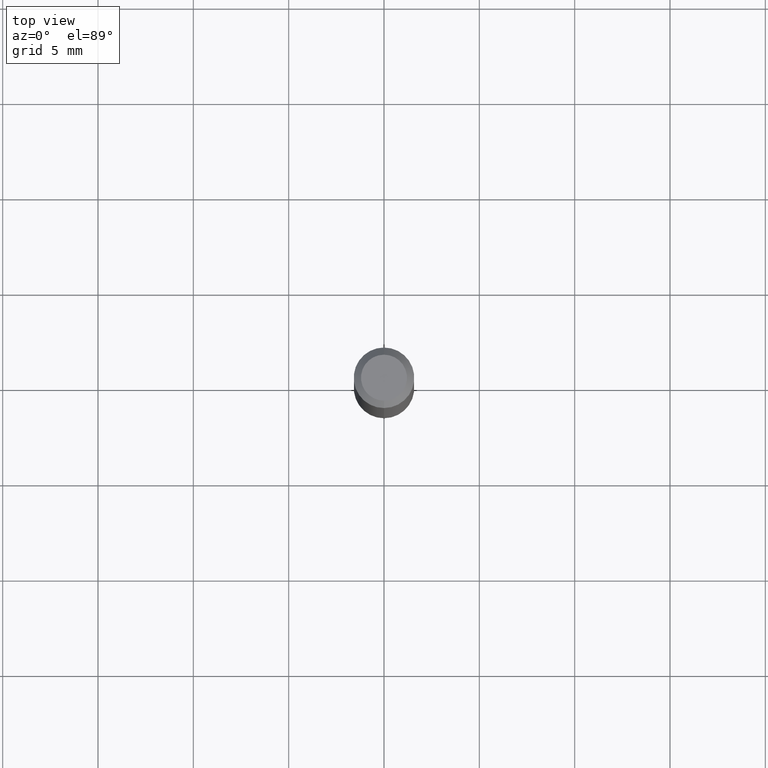
[diagram: clean part render]
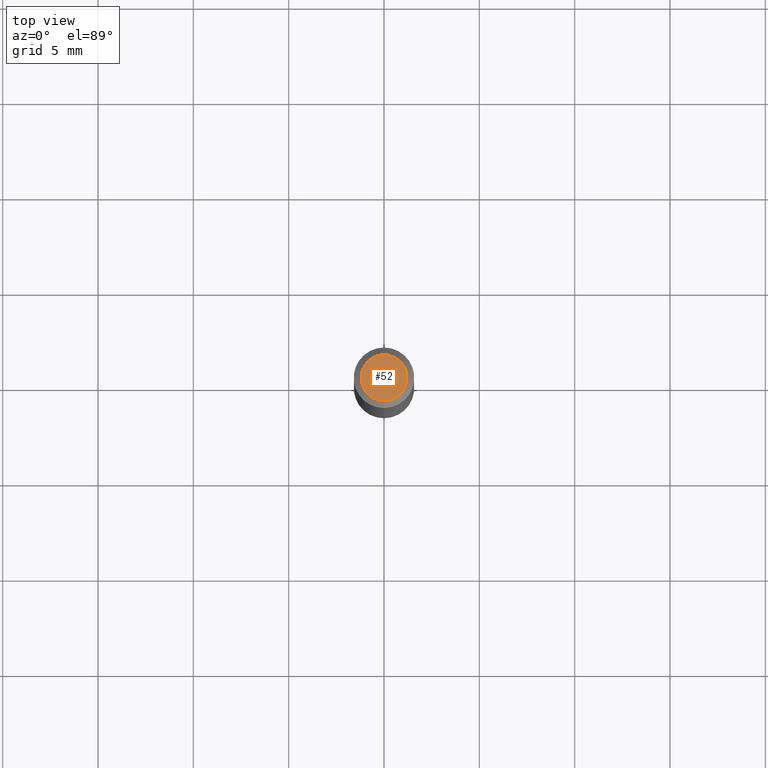
[diagram: same view with one face highlighted and labeled with its STEP entity id]
A machine part, top view. The second image highlights one B-rep face of the part: STEP entity #52.
In plain terms, the highlighted planar face has unit normal (0, -0, -1).
Its self-contained STEP definition (entity closure, byte-faithful):
#52 = ADVANCED_FACE ( 'NONE', ( #170 ), #98, .F. ) ;
#98 = PLANE ( 'NONE',  #128 ) ;
#122 = DIRECTION ( 'NONE',  ( 6.982962677686265922E-15, 1.000000000000000000, -3.491457958623879198E-15 ) ) ;
#128 = AXIS2_PLACEMENT_3D ( 'NONE', #494, #330, #122 ) ;
#147 = VERTEX_POINT ( 'NONE', #151 ) ;
#151 = CARTESIAN_POINT ( 'NONE',  ( -3.773273898774340269E-16, -0.04749999999999999362, 1.569828228823879964E-16 ) ) ;
#167 = VERTEX_POINT ( 'NONE', #390 ) ;
#170 = FACE_OUTER_BOUND ( 'NONE', #240, .T. ) ;
#184 = ORIENTED_EDGE ( 'NONE', *, *, #382, .T. ) ;
#233 = CIRCLE ( 'NONE', #300, 0.04749999999999999362 ) ;
#240 = EDGE_LOOP ( 'NONE', ( #184, #246 ) ) ;
#246 = ORIENTED_EDGE ( 'NONE', *, *, #288, .T. ) ;
#273 = CIRCLE ( 'NONE', #451, 0.04749999999999999362 ) ;
#288 = EDGE_CURVE ( 'NONE', #147, #167, #273, .T. ) ;
#293 = CARTESIAN_POINT ( 'NONE',  ( 2.167049569004966557E-46, -3.093931082984982504E-32, -8.861430152246261711E-18 ) ) ;
#300 = AXIS2_PLACEMENT_3D ( 'NONE', #293, #455, #345 ) ;
#330 = DIRECTION ( 'NONE',  ( 2.445485132504989475E-29, -3.491457958623879198E-15, -1.000000000000000000 ) ) ;
#345 = DIRECTION ( 'NONE',  ( -6.982962677686266711E-15, -1.000000000000000000, 3.491457958623879592E-15 ) ) ;
#382 = EDGE_CURVE ( 'NONE', #167, #147, #233, .T. ) ;
#390 = CARTESIAN_POINT ( 'NONE',  ( 3.840629472727447874E-16, 0.04749999999999999362, -1.747056831868805136E-16 ) ) ;
#446 = CARTESIAN_POINT ( 'NONE',  ( 2.167049569004966557E-46, -3.093931082984982504E-32, -8.861430152246261711E-18 ) ) ;
#451 = AXIS2_PLACEMENT_3D ( 'NONE', #446, #493, #487 ) ;
#455 = DIRECTION ( 'NONE',  ( -2.445485132504990036E-29, 3.491457958623879198E-15, 1.000000000000000000 ) ) ;
#487 = DIRECTION ( 'NONE',  ( -6.982962677686266711E-15, -1.000000000000000000, 3.491457958623879592E-15 ) ) ;
#493 = DIRECTION ( 'NONE',  ( -2.445485132504990036E-29, 3.491457958623879198E-15, 1.000000000000000000 ) ) ;
#494 = CARTESIAN_POINT ( 'NONE',  ( 3.316907271900976096E-16, 0.04749999999999999362, -1.702749681107573843E-16 ) ) ;